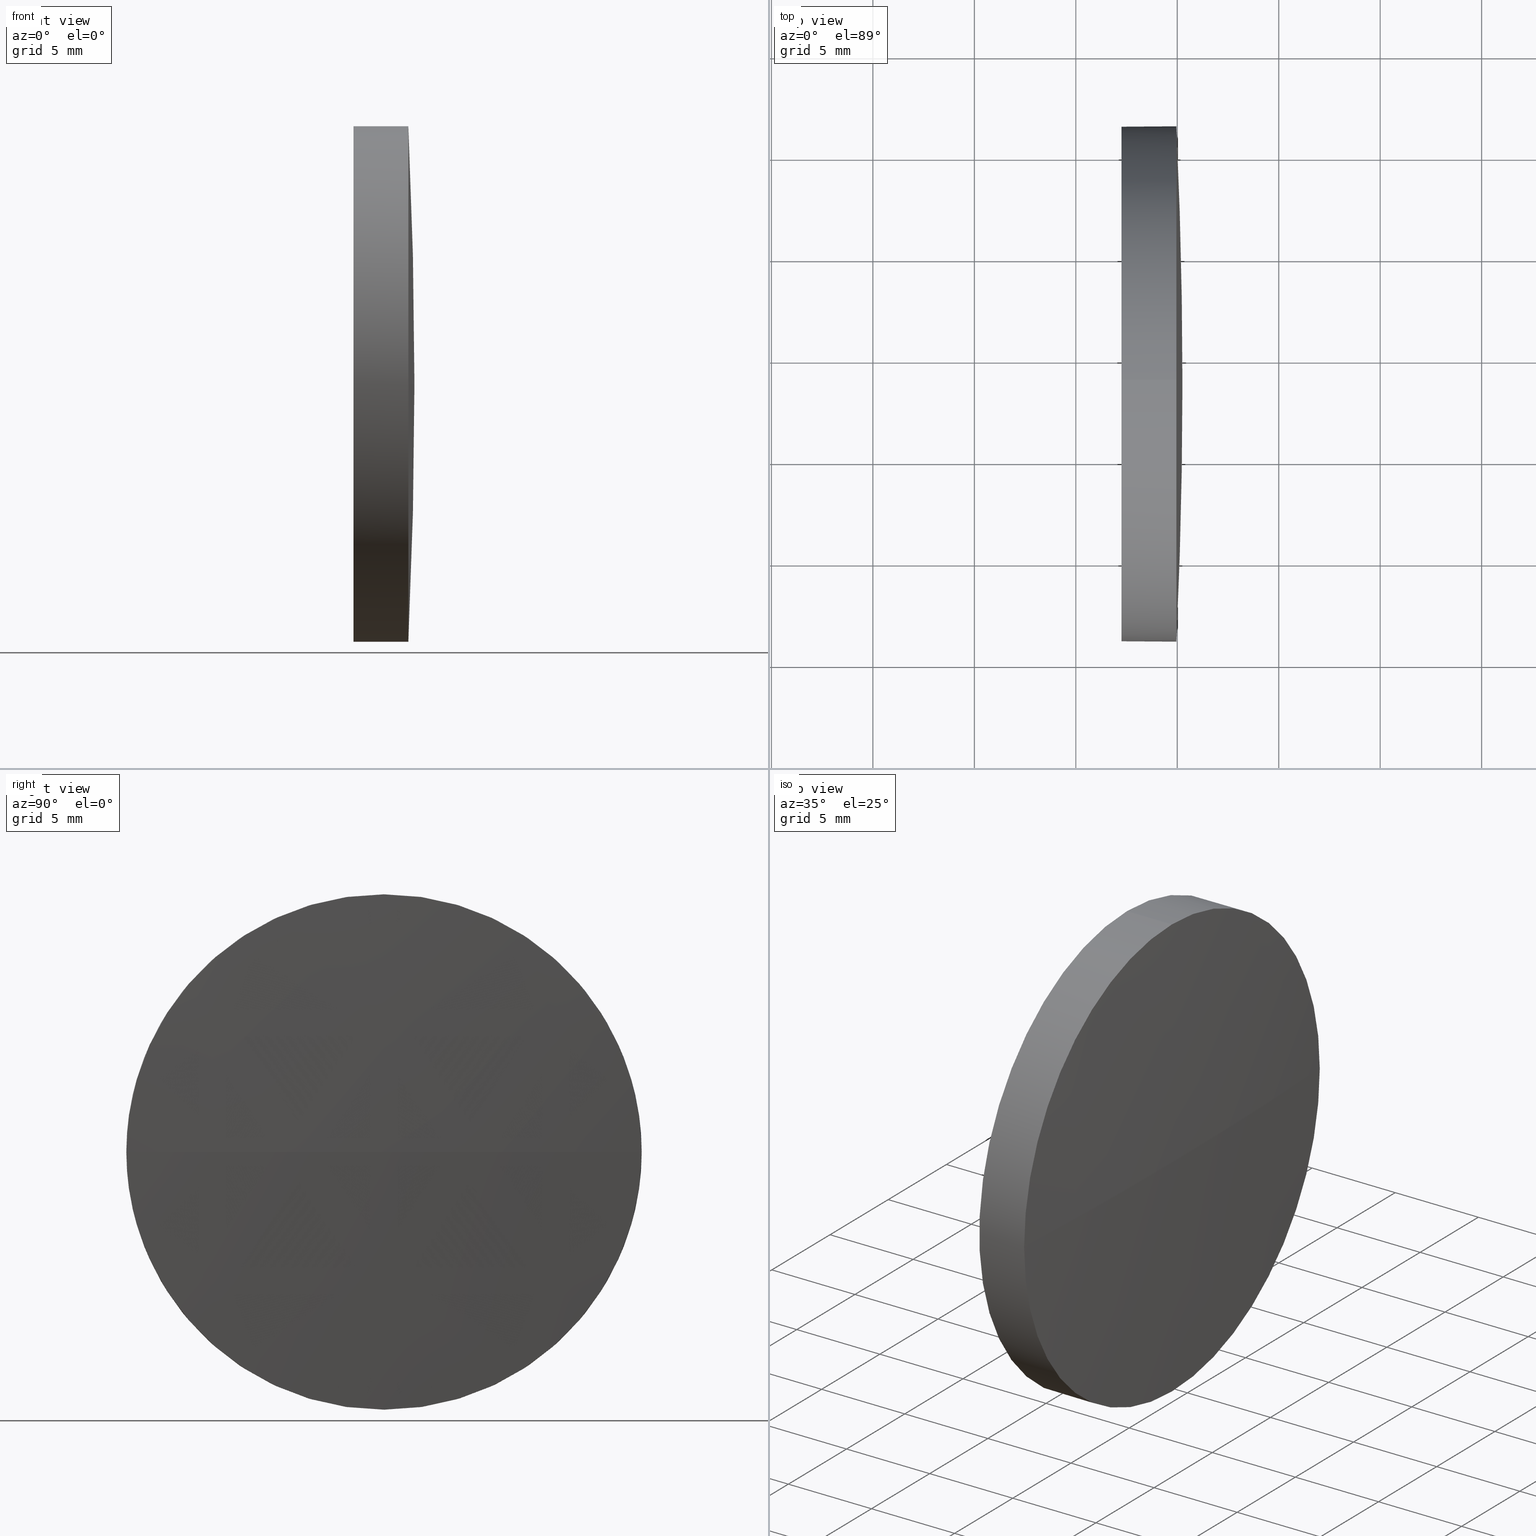
[diagram: canonical four-view strip — front | top / right | iso, engineering-drawing reading convention]
A machine part, canonical four-view strip (front | top / right | iso — engineering-drawing reading convention). The complete STEP part file that produces these views, byte-faithful:
ISO-10303-21;
HEADER;
FILE_DESCRIPTION (( 'STEP AP214' ),
    '1' );
FILE_NAME ('100382.STEP',
    '2019-06-05T01:15:03',
    ( '' ),
    ( '' ),
    'SwSTEP 2.0',
    'SolidWorks 2016',
    '' );
FILE_SCHEMA (( 'AUTOMOTIVE_DESIGN' ));
ENDSEC;

DATA;
#1 = ORIENTED_EDGE ( 'NONE', *, *, #179, .F. ) ;
#2 = FACE_OUTER_BOUND ( 'NONE', #82, .T. ) ;
#3 = AXIS2_PLACEMENT_3D ( 'NONE', #134, #142, #64 ) ;
#4 = PRODUCT_DEFINITION_SHAPE ( 'NONE', 'NONE',  #5 ) ;
#5 = PRODUCT_DEFINITION ( 'δ֪', '', #170, #26 ) ;
#6 = EDGE_CURVE ( 'NONE', #99, #131, #138, .T. ) ;
#7 = ORIENTED_EDGE ( 'NONE', *, *, #144, .T. ) ;
#8 = PRESENTATION_STYLE_ASSIGNMENT (( #92 ) ) ;
#9 = CARTESIAN_POINT ( 'NONE',  ( 695.2543296014569000, 68.74304805119973600, 0.0000000000000000000 ) ) ;
#10 = AXIS2_PLACEMENT_3D ( 'NONE', #86, #90, #69 ) ;
#11 = DIRECTION ( 'NONE',  ( -0.0000000000000000000, 0.0000000000000000000, -1.000000000000000000 ) ) ;
#12 = LINE ( 'NONE', #169, #153 ) ;
#13 = DIRECTION ( 'NONE',  ( 0.0000000000000000000, 0.0000000000000000000, 1.000000000000000000 ) ) ;
#14 = CARTESIAN_POINT ( 'NONE',  ( 426.2876629347877600, 68.74304805119972200, 0.0000000000000000000 ) ) ;
#15 = DIRECTION ( 'NONE',  ( -0.0000000000000000000, 0.0000000000000000000, -1.000000000000000000 ) ) ;
#16 = SURFACE_SIDE_STYLE ('',( #166 ) ) ;
#17 = SURFACE_STYLE_FILL_AREA ( #132 ) ;
#18 = PRODUCT ( '100382', '100382', '', ( #182 ) ) ;
#19 = PRESENTATION_LAYER_ASSIGNMENT (  '', '', ( #151 ) ) ;
#20 = ORIENTED_EDGE ( 'NONE', *, *, #128, .F. ) ;
#21 = COLOUR_RGB ( '',1.000000000000000000, 1.000000000000000000, 1.000000000000000000 ) ;
#22 = EDGE_CURVE ( 'NONE', #24, #99, #34, .T. ) ;
#23 =( GEOMETRIC_REPRESENTATION_CONTEXT ( 3 ) GLOBAL_UNCERTAINTY_ASSIGNED_CONTEXT ( ( #83 ) ) GLOBAL_UNIT_ASSIGNED_CONTEXT ( ( #173, #37, #186 ) ) REPRESENTATION_CONTEXT ( 'NONE', 'WORKASPACE' ) );
#24 = VERTEX_POINT ( 'NONE', #167 ) ;
#25 = FACE_OUTER_BOUND ( 'NONE', #125, .T. ) ;
#26 = PRODUCT_DEFINITION_CONTEXT ( 'detailed design', #139, 'design' ) ;
#27 = ADVANCED_BREP_SHAPE_REPRESENTATION ( '100382', ( #45, #3 ), #23 ) ;
#28 = FACE_OUTER_BOUND ( 'NONE', #122, .T. ) ;
#29 = ADVANCED_FACE ( 'NONE', ( #112 ), #100, .T. ) ;
#30 = EDGE_CURVE ( 'NONE', #127, #148, #39, .T. ) ;
#31 =( LENGTH_UNIT ( ) NAMED_UNIT ( * ) SI_UNIT ( .MILLI., .METRE. ) );
#32 = CARTESIAN_POINT ( 'NONE',  ( 694.9543296014569500, 56.04304805120011000, -1.555301434917091100E-015 ) ) ;
#33 = AXIS2_PLACEMENT_3D ( 'NONE', #70, #180, #13 ) ;
#34 = CIRCLE ( 'NONE', #10, 12.70000000000000300 ) ;
#35 = CARTESIAN_POINT ( 'NONE',  ( 694.9543296014569500, 68.74304805119973600, -12.70000000000000300 ) ) ;
#36 = DIRECTION ( 'NONE',  ( 0.0000000000000000000, 0.0000000000000000000, 1.000000000000000000 ) ) ;
#37 =( NAMED_UNIT ( * ) PLANE_ANGLE_UNIT ( ) SI_UNIT ( $, .RADIAN. ) );
#38 = MECHANICAL_DESIGN_GEOMETRIC_PRESENTATION_REPRESENTATION (  '', ( #66 ), #110 ) ;
#39 = CIRCLE ( 'NONE', #145, 12.70000000000000300 ) ;
#40 = EDGE_CURVE ( 'NONE', #52, #24, #60, .T. ) ;
#41 = ADVANCED_FACE ( 'NONE', ( #28 ), #117, .T. ) ;
#42 = CARTESIAN_POINT ( 'NONE',  ( 694.9543296014569500, 68.74304805119973600, 0.0000000000000000000 ) ) ;
#43 = DIRECTION ( 'NONE',  ( 0.0000000000000000000, 0.0000000000000000000, 1.000000000000000000 ) ) ;
#44 = PLANE ( 'NONE',  #124 ) ;
#45 = MANIFOLD_SOLID_BREP ( '��ת1', #126 ) ;
#46 = ORIENTED_EDGE ( 'NONE', *, *, #50, .T. ) ;
#47 = CARTESIAN_POINT ( 'NONE',  ( 686.5496560540020700, 68.74304805119973600, 0.0000000000000000000 ) ) ;
#48 = SPHERICAL_SURFACE ( 'NONE', #185, 268.9666666666692000 ) ;
#49 = CARTESIAN_POINT ( 'NONE',  ( 694.9543296014569500, 81.44304805119935500, 0.0000000000000000000 ) ) ;
#50 = EDGE_CURVE ( 'NONE', #148, #127, #168, .T. ) ;
#51 = DIRECTION ( 'NONE',  ( -0.0000000000000000000, 0.0000000000000000000, 1.000000000000000000 ) ) ;
#52 = VERTEX_POINT ( 'NONE', #32 ) ;
#53 = ORIENTED_EDGE ( 'NONE', *, *, #84, .T. ) ;
#54 = SHAPE_DEFINITION_REPRESENTATION ( #4, #27 ) ;
#55 = AXIS2_PLACEMENT_3D ( 'NONE', #141, #172, #36 ) ;
#56 = ORIENTED_EDGE ( 'NONE', *, *, #30, .F. ) ;
#57 = ADVANCED_FACE ( 'NONE', ( #183 ), #44, .F. ) ;
#58 = ORIENTED_EDGE ( 'NONE', *, *, #84, .F. ) ;
#59 = SURFACE_SIDE_STYLE ('',( #17 ) ) ;
#60 = CIRCLE ( 'NONE', #175, 12.70000000000000300 ) ;
#61 = SURFACE_STYLE_USAGE ( .BOTH. , #59 ) ;
#62 = UNCERTAINTY_MEASURE_WITH_UNIT (LENGTH_MEASURE( 1.000000000000000100E-005 ), #31, 'distance_accuracy_value', 'NONE');
#63 = ORIENTED_EDGE ( 'NONE', *, *, #6, .T. ) ;
#64 = DIRECTION ( 'NONE',  ( 1.000000000000000000, 0.0000000000000000000, 0.0000000000000000000 ) ) ;
#65 = DIRECTION ( 'NONE',  ( -1.000000000000000000, -0.0000000000000000000, -0.0000000000000000000 ) ) ;
#66 = STYLED_ITEM ( 'NONE', ( #8 ), #27 ) ;
#67 = COLOUR_RGB ( '',1.000000000000000000, 1.000000000000000000, 1.000000000000000000 ) ;
#68 = UNCERTAINTY_MEASURE_WITH_UNIT (LENGTH_MEASURE( 1.000000000000000100E-005 ), #94, 'distance_accuracy_value', 'NONE');
#69 = DIRECTION ( 'NONE',  ( 0.0000000000000000000, 0.0000000000000000000, 1.000000000000000000 ) ) ;
#70 = CARTESIAN_POINT ( 'NONE',  ( 686.5496560540020700, 68.74304805119973600, 0.0000000000000000000 ) ) ;
#71 = PRODUCT_RELATED_PRODUCT_CATEGORY ( 'part', '', ( #18 ) ) ;
#72 = ORIENTED_EDGE ( 'NONE', *, *, #22, .T. ) ;
#73 = APPLICATION_CONTEXT ( 'automotive_design' ) ;
#74 = APPLICATION_PROTOCOL_DEFINITION ( 'draft international standard', 'automotive_design', 1998, #73 ) ;
#75 = AXIS2_PLACEMENT_3D ( 'NONE', #105, #11, #114 ) ;
#76 = CARTESIAN_POINT ( 'NONE',  ( 692.2543296014569000, 68.74304805119973600, 0.0000000000000000000 ) ) ;
#77 = FILL_AREA_STYLE_COLOUR ( '', #21 ) ;
#78 = CIRCLE ( 'NONE', #55, 12.70000000000000300 ) ;
#79 = MECHANICAL_DESIGN_GEOMETRIC_PRESENTATION_REPRESENTATION (  '', ( #151 ), #164 ) ;
#80 = PRESENTATION_STYLE_ASSIGNMENT (( #61 ) ) ;
#81 = VERTEX_POINT ( 'NONE', #9 ) ;
#82 = EDGE_LOOP ( 'NONE', ( #1, #88, #93, #107 ) ) ;
#83 = UNCERTAINTY_MEASURE_WITH_UNIT (LENGTH_MEASURE( 1.000000000000000100E-005 ), #173, 'distance_accuracy_value', 'NONE');
#84 = EDGE_CURVE ( 'NONE', #131, #148, #120, .T. ) ;
#85 = ORIENTED_EDGE ( 'NONE', *, *, #184, .F. ) ;
#86 = CARTESIAN_POINT ( 'NONE',  ( 694.9543296014569500, 68.74304805119973600, 0.0000000000000000000 ) ) ;
#87 = DIRECTION ( 'NONE',  ( -1.000000000000000000, -0.0000000000000000000, -0.0000000000000000000 ) ) ;
#88 = ORIENTED_EDGE ( 'NONE', *, *, #184, .T. ) ;
#89 = VECTOR ( 'NONE', #106, 1000.000000000000000 ) ;
#90 = DIRECTION ( 'NONE',  ( -1.000000000000000000, -0.0000000000000000000, -0.0000000000000000000 ) ) ;
#91 = DIRECTION ( 'NONE',  ( 0.0000000000000000000, 1.224646799147353200E-016, -1.000000000000000000 ) ) ;
#92 = SURFACE_STYLE_USAGE ( .BOTH. , #16 ) ;
#93 = ORIENTED_EDGE ( 'NONE', *, *, #22, .F. ) ;
#94 =( LENGTH_UNIT ( ) NAMED_UNIT ( * ) SI_UNIT ( .MILLI., .METRE. ) );
#95 = CARTESIAN_POINT ( 'NONE',  ( 426.2876629347877600, 68.74304805119972200, 0.0000000000000000000 ) ) ;
#96 = DIRECTION ( 'NONE',  ( -1.000000000000000000, -0.0000000000000000000, -0.0000000000000000000 ) ) ;
#97 = AXIS2_PLACEMENT_3D ( 'NONE', #47, #96, #143 ) ;
#98 = ORIENTED_EDGE ( 'NONE', *, *, #50, .F. ) ;
#99 = VERTEX_POINT ( 'NONE', #49 ) ;
#100 = CYLINDRICAL_SURFACE ( 'NONE', #33, 12.70000000000000300 ) ;
#101 = ORIENTED_EDGE ( 'NONE', *, *, #30, .T. ) ;
#102 = DIRECTION ( 'NONE',  ( 0.0000000000000000000, 0.0000000000000000000, 1.000000000000000000 ) ) ;
#103 = CIRCLE ( 'NONE', #176, 268.9666666666692000 ) ;
#104 = CARTESIAN_POINT ( 'NONE',  ( 694.9543296014569500, 68.74304805119973600, 0.0000000000000000000 ) ) ;
#105 = CARTESIAN_POINT ( 'NONE',  ( 426.2876629347877600, 68.74304805119972200, 0.0000000000000000000 ) ) ;
#106 = DIRECTION ( 'NONE',  ( -1.000000000000000000, -0.0000000000000000000, -0.0000000000000000000 ) ) ;
#107 = ORIENTED_EDGE ( 'NONE', *, *, #40, .F. ) ;
#108 = DIRECTION ( 'NONE',  ( 0.0000000000000000000, 1.000000000000000000, 0.0000000000000000000 ) ) ;
#109 = DIRECTION ( 'NONE',  ( 1.000000000000000000, 0.0000000000000000000, 0.0000000000000000000 ) ) ;
#110 =( GEOMETRIC_REPRESENTATION_CONTEXT ( 3 ) GLOBAL_UNCERTAINTY_ASSIGNED_CONTEXT ( ( #68 ) ) GLOBAL_UNIT_ASSIGNED_CONTEXT ( ( #94, #121, #136 ) ) REPRESENTATION_CONTEXT ( 'NONE', 'WORKASPACE' ) );
#111 = DIRECTION ( 'NONE',  ( 0.0000000000000000000, 0.0000000000000000000, -1.000000000000000000 ) ) ;
#112 = FACE_OUTER_BOUND ( 'NONE', #160, .T. ) ;
#113 = ADVANCED_FACE ( 'NONE', ( #2 ), #48, .T. ) ;
#114 = DIRECTION ( 'NONE',  ( 0.0000000000000000000, 1.000000000000000000, 0.0000000000000000000 ) ) ;
#115 = PRESENTATION_LAYER_ASSIGNMENT (  '', '', ( #66 ) ) ;
#116 = FILL_AREA_STYLE_COLOUR ( '', #67 ) ;
#117 = SPHERICAL_SURFACE ( 'NONE', #75, 268.9666666666692000 ) ;
#118 = DIRECTION ( 'NONE',  ( 0.0000000000000000000, 0.0000000000000000000, 1.000000000000000000 ) ) ;
#119 = AXIS2_PLACEMENT_3D ( 'NONE', #42, #147, #43 ) ;
#120 = LINE ( 'NONE', #154, #89 ) ;
#121 =( NAMED_UNIT ( * ) PLANE_ANGLE_UNIT ( ) SI_UNIT ( $, .RADIAN. ) );
#122 = EDGE_LOOP ( 'NONE', ( #85, #165, #20, #135 ) ) ;
#123 = DIRECTION ( 'NONE',  ( 1.000000000000000000, 0.0000000000000000000, 0.0000000000000000000 ) ) ;
#124 = AXIS2_PLACEMENT_3D ( 'NONE', #150, #109, #111 ) ;
#125 = EDGE_LOOP ( 'NONE', ( #63, #53, #56, #163, #72 ) ) ;
#126 = CLOSED_SHELL ( 'NONE', ( #146, #41, #113, #29, #57 ) ) ;
#127 = VERTEX_POINT ( 'NONE', #155 ) ;
#128 = EDGE_CURVE ( 'NONE', #131, #52, #78, .T. ) ;
#129 = AXIS2_PLACEMENT_3D ( 'NONE', #95, #91, #159 ) ;
#130 = ORIENTED_EDGE ( 'NONE', *, *, #40, .T. ) ;
#131 = VERTEX_POINT ( 'NONE', #35 ) ;
#132 = FILL_AREA_STYLE ('',( #116 ) ) ;
#133 = FILL_AREA_STYLE ('',( #77 ) ) ;
#134 = CARTESIAN_POINT ( 'NONE',  ( 0.0000000000000000000, 0.0000000000000000000, 0.0000000000000000000 ) ) ;
#135 = ORIENTED_EDGE ( 'NONE', *, *, #6, .F. ) ;
#136 =( NAMED_UNIT ( * ) SI_UNIT ( $, .STERADIAN. ) SOLID_ANGLE_UNIT ( ) );
#137 = CARTESIAN_POINT ( 'NONE',  ( 692.2543296014569000, 68.74304805119973600, -12.70000000000000300 ) ) ;
#138 = CIRCLE ( 'NONE', #119, 12.70000000000000300 ) ;
#139 = APPLICATION_CONTEXT ( 'automotive_design' ) ;
#140 = DIRECTION ( 'NONE',  ( -1.000000000000000000, -0.0000000000000000000, -0.0000000000000000000 ) ) ;
#141 = CARTESIAN_POINT ( 'NONE',  ( 694.9543296014569500, 68.74304805119973600, 0.0000000000000000000 ) ) ;
#142 = DIRECTION ( 'NONE',  ( 0.0000000000000000000, 0.0000000000000000000, 1.000000000000000000 ) ) ;
#143 = DIRECTION ( 'NONE',  ( 0.0000000000000000000, 0.0000000000000000000, 1.000000000000000000 ) ) ;
#144 = EDGE_CURVE ( 'NONE', #24, #127, #12, .T. ) ;
#145 = AXIS2_PLACEMENT_3D ( 'NONE', #178, #140, #102 ) ;
#146 = ADVANCED_FACE ( 'NONE', ( #25 ), #177, .T. ) ;
#147 = DIRECTION ( 'NONE',  ( -1.000000000000000000, -0.0000000000000000000, -0.0000000000000000000 ) ) ;
#148 = VERTEX_POINT ( 'NONE', #137 ) ;
#149 =( NAMED_UNIT ( * ) PLANE_ANGLE_UNIT ( ) SI_UNIT ( $, .RADIAN. ) );
#150 = CARTESIAN_POINT ( 'NONE',  ( 692.2543296014569000, 68.74304805119973600, 0.0000000000000000000 ) ) ;
#151 = STYLED_ITEM ( 'NONE', ( #80 ), #45 ) ;
#152 =( NAMED_UNIT ( * ) SI_UNIT ( $, .STERADIAN. ) SOLID_ANGLE_UNIT ( ) );
#153 = VECTOR ( 'NONE', #157, 1000.000000000000000 ) ;
#154 = CARTESIAN_POINT ( 'NONE',  ( 686.5496560540020700, 68.74304805119973600, -12.70000000000000300 ) ) ;
#155 = CARTESIAN_POINT ( 'NONE',  ( 692.2543296014569000, 68.74304805119973600, 12.70000000000000300 ) ) ;
#156 = EDGE_LOOP ( 'NONE', ( #101, #46 ) ) ;
#157 = DIRECTION ( 'NONE',  ( -1.000000000000000000, -0.0000000000000000000, -0.0000000000000000000 ) ) ;
#158 = AXIS2_PLACEMENT_3D ( 'NONE', #76, #65, #181 ) ;
#159 = DIRECTION ( 'NONE',  ( 0.0000000000000000000, 1.000000000000000000, 1.224646799147353000E-016 ) ) ;
#160 = EDGE_LOOP ( 'NONE', ( #58, #161, #130, #7, #98 ) ) ;
#161 = ORIENTED_EDGE ( 'NONE', *, *, #128, .T. ) ;
#162 = CIRCLE ( 'NONE', #129, 268.9666666666692000 ) ;
#163 = ORIENTED_EDGE ( 'NONE', *, *, #144, .F. ) ;
#164 =( GEOMETRIC_REPRESENTATION_CONTEXT ( 3 ) GLOBAL_UNCERTAINTY_ASSIGNED_CONTEXT ( ( #62 ) ) GLOBAL_UNIT_ASSIGNED_CONTEXT ( ( #31, #149, #152 ) ) REPRESENTATION_CONTEXT ( 'NONE', 'WORKASPACE' ) );
#165 = ORIENTED_EDGE ( 'NONE', *, *, #179, .T. ) ;
#166 = SURFACE_STYLE_FILL_AREA ( #133 ) ;
#167 = CARTESIAN_POINT ( 'NONE',  ( 694.9543296014569500, 68.74304805119973600, 12.70000000000000300 ) ) ;
#168 = CIRCLE ( 'NONE', #158, 12.70000000000000300 ) ;
#169 = CARTESIAN_POINT ( 'NONE',  ( 686.5496560540020700, 68.74304805119973600, 12.70000000000000300 ) ) ;
#170 = PRODUCT_DEFINITION_FORMATION_WITH_SPECIFIED_SOURCE ( '�κ�', '', #18, .NOT_KNOWN. ) ;
#171 = CARTESIAN_POINT ( 'NONE',  ( 426.2876629347877600, 68.74304805119972200, 0.0000000000000000000 ) ) ;
#172 = DIRECTION ( 'NONE',  ( -1.000000000000000000, -0.0000000000000000000, -0.0000000000000000000 ) ) ;
#173 =( LENGTH_UNIT ( ) NAMED_UNIT ( * ) SI_UNIT ( .MILLI., .METRE. ) );
#174 = APPLICATION_PROTOCOL_DEFINITION ( 'draft international standard', 'automotive_design', 1998, #139 ) ;
#175 = AXIS2_PLACEMENT_3D ( 'NONE', #104, #87, #118 ) ;
#176 = AXIS2_PLACEMENT_3D ( 'NONE', #171, #51, #123 ) ;
#177 = CYLINDRICAL_SURFACE ( 'NONE', #97, 12.70000000000000300 ) ;
#178 = CARTESIAN_POINT ( 'NONE',  ( 692.2543296014569000, 68.74304805119973600, 0.0000000000000000000 ) ) ;
#179 = EDGE_CURVE ( 'NONE', #81, #52, #162, .T. ) ;
#180 = DIRECTION ( 'NONE',  ( -1.000000000000000000, -0.0000000000000000000, -0.0000000000000000000 ) ) ;
#181 = DIRECTION ( 'NONE',  ( 0.0000000000000000000, 0.0000000000000000000, 1.000000000000000000 ) ) ;
#182 = PRODUCT_CONTEXT ( 'NONE', #73, 'mechanical' ) ;
#183 = FACE_OUTER_BOUND ( 'NONE', #156, .T. ) ;
#184 = EDGE_CURVE ( 'NONE', #81, #99, #103, .T. ) ;
#185 = AXIS2_PLACEMENT_3D ( 'NONE', #14, #15, #108 ) ;
#186 =( NAMED_UNIT ( * ) SI_UNIT ( $, .STERADIAN. ) SOLID_ANGLE_UNIT ( ) );
ENDSEC;
END-ISO-10303-21;
